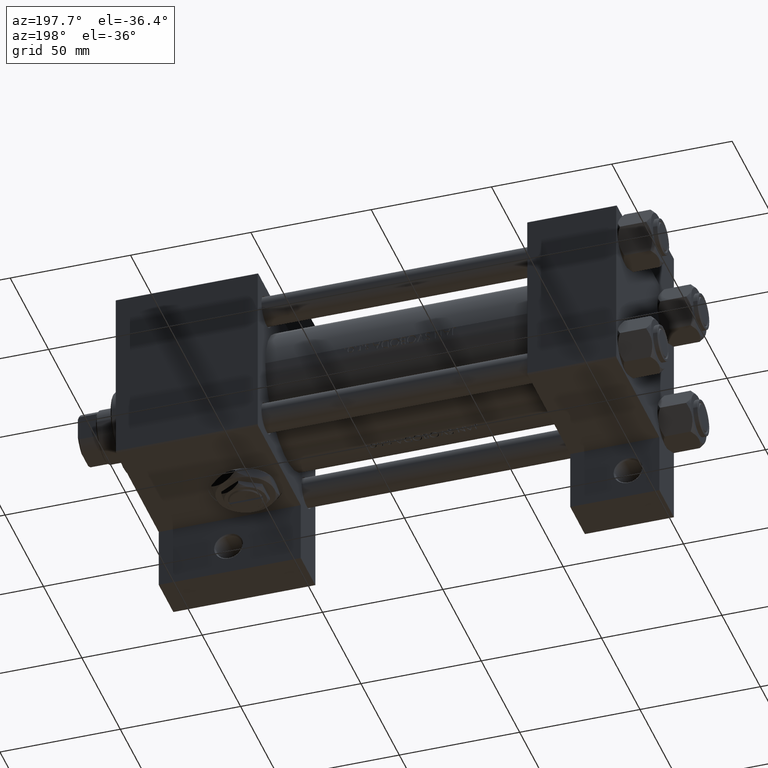
[diagram: clean part render]
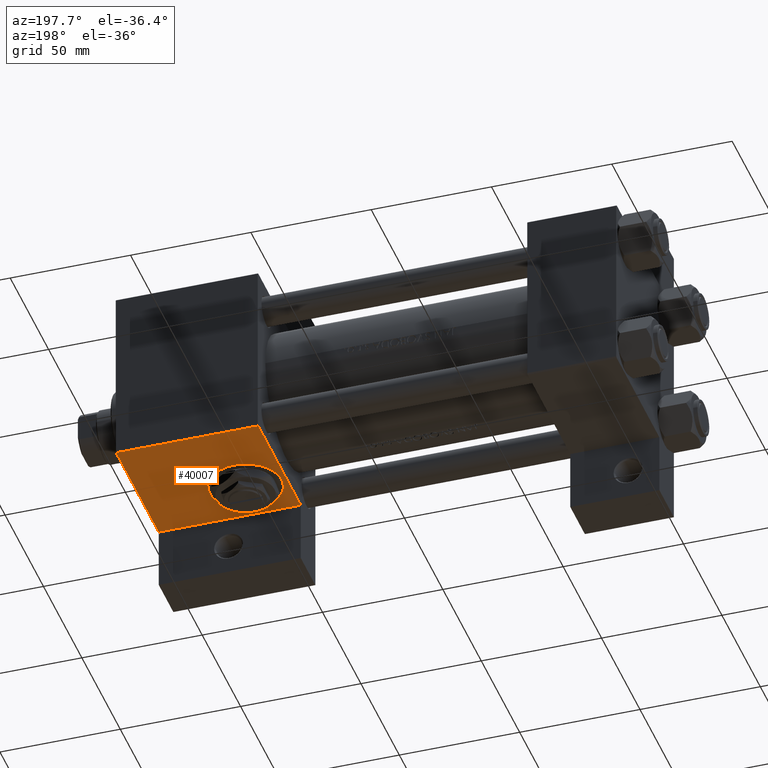
[diagram: same view with one face highlighted and labeled with its STEP entity id]
A machine part, auxiliary view. The second image highlights one B-rep face of the part: STEP entity #40007.
In plain terms, the highlighted planar face has unit normal (0, 0, -1).
Its self-contained STEP definition (entity closure, byte-faithful):
#359 = CARTESIAN_POINT ( 'NONE',  ( 149.0000000000000000, 37.50000000000000000, 36.99999999999999289 ) ) ;
#1391 = CARTESIAN_POINT ( 'NONE',  ( 149.0000000000000000, 37.50000000000000000, -18.50000000000000000 ) ) ;
#1693 = FACE_BOUND ( 'NONE', #20043, .T. ) ;
#1768 = CARTESIAN_POINT ( 'NONE',  ( 165.9999999999999716, 37.50000000000000000, -15.00000000000002487 ) ) ;
#2922 = VECTOR ( 'NONE', #32035, 1000.000000000000000 ) ;
#3543 = DIRECTION ( 'NONE',  ( 0.000000000000000000, 1.000000000000000000, 0.000000000000000000 ) ) ;
#6325 = EDGE_CURVE ( 'NONE', #20282, #35013, #9003, .T. ) ;
#6381 = AXIS2_PLACEMENT_3D ( 'NONE', #28101, #16651, #38575 ) ;
#6602 = EDGE_CURVE ( 'NONE', #36218, #33463, #16595, .T. ) ;
#7580 = CARTESIAN_POINT ( 'NONE',  ( 149.0000000000000000, 37.50000000000000000, -18.50000000000000355 ) ) ;
#9003 = LINE ( 'NONE', #34906, #37203 ) ;
#9314 = ORIENTED_EDGE ( 'NONE', *, *, #6602, .T. ) ;
#10360 = DIRECTION ( 'NONE',  ( 0.000000000000000000, 0.000000000000000000, -1.000000000000000000 ) ) ;
#10599 = LINE ( 'NONE', #21078, #38142 ) ;
#12323 = VERTEX_POINT ( 'NONE', #21459 ) ;
#13155 = FACE_OUTER_BOUND ( 'NONE', #16094, .T. ) ;
#16094 = EDGE_LOOP ( 'NONE', ( #30718, #34142, #45418, #9314 ) ) ;
#16595 = LINE ( 'NONE', #1391, #2922 ) ;
#16651 = DIRECTION ( 'NONE',  ( -0.000000000000000000, 1.000000000000000000, 0.000000000000000000 ) ) ;
#17856 = CARTESIAN_POINT ( 'NONE',  ( 149.0000000000000000, 37.50000000000000000, 37.49999999999999289 ) ) ;
#18327 = DIRECTION ( 'NONE',  ( 0.000000000000000000, 0.000000000000000000, -1.000000000000000000 ) ) ;
#19907 = CARTESIAN_POINT ( 'NONE',  ( 208.0000000000000284, 37.49999999999999289, -18.50000000000000000 ) ) ;
#20043 = EDGE_LOOP ( 'NONE', ( #47993, #41968 ) ) ;
#20282 = VERTEX_POINT ( 'NONE', #359 ) ;
#20363 = CARTESIAN_POINT ( 'NONE',  ( 165.9999999999999716, 37.50000000000000000, 0.000000000000000000 ) ) ;
#21078 = CARTESIAN_POINT ( 'NONE',  ( 208.0000000000000000, 37.50000000000000000, 37.49999999999999289 ) ) ;
#21459 = CARTESIAN_POINT ( 'NONE',  ( 165.9999999999999716, 37.50000000000000000, 15.00000000000002487 ) ) ;
#21484 = EDGE_CURVE ( 'NONE', #12323, #49267, #25575, .T. ) ;
#23383 = PLANE ( 'NONE',  #6381 ) ;
#24188 = DIRECTION ( 'NONE',  ( 1.000000000000000000, 0.000000000000000000, 0.000000000000000000 ) ) ;
#25575 = CIRCLE ( 'NONE', #35887, 15.00000000000002487 ) ;
#26223 = DIRECTION ( 'NONE',  ( 0.000000000000000000, 0.000000000000000000, 1.000000000000000000 ) ) ;
#26311 = EDGE_CURVE ( 'NONE', #49267, #12323, #45811, .T. ) ;
#28101 = CARTESIAN_POINT ( 'NONE',  ( 208.0000000000000000, 37.50000000000000000, 37.49999999999999289 ) ) ;
#29484 = VECTOR ( 'NONE', #18327, 1000.000000000000000 ) ;
#30718 = ORIENTED_EDGE ( 'NONE', *, *, #41971, .F. ) ;
#32035 = DIRECTION ( 'NONE',  ( -1.000000000000000000, 1.176083712526648456E-16, -0.000000000000000000 ) ) ;
#33463 = VERTEX_POINT ( 'NONE', #7580 ) ;
#34142 = ORIENTED_EDGE ( 'NONE', *, *, #6325, .T. ) ;
#34263 = EDGE_CURVE ( 'NONE', #35013, #36218, #10599, .T. ) ;
#34906 = CARTESIAN_POINT ( 'NONE',  ( 208.0000000000000000, 37.50000000000000000, 36.99999999999999289 ) ) ;
#35013 = VERTEX_POINT ( 'NONE', #46327 ) ;
#35566 = DIRECTION ( 'NONE',  ( 0.000000000000000000, 1.000000000000000000, 0.000000000000000000 ) ) ;
#35887 = AXIS2_PLACEMENT_3D ( 'NONE', #44891, #3543, #26223 ) ;
#36218 = VERTEX_POINT ( 'NONE', #19907 ) ;
#36796 = LINE ( 'NONE', #17856, #29484 ) ;
#37203 = VECTOR ( 'NONE', #24188, 1000.000000000000000 ) ;
#38142 = VECTOR ( 'NONE', #10360, 1000.000000000000000 ) ;
#38575 = DIRECTION ( 'NONE',  ( 0.000000000000000000, -0.000000000000000000, 1.000000000000000000 ) ) ;
#38678 = AXIS2_PLACEMENT_3D ( 'NONE', #20363, #35566, #43764 ) ;
#40007 = ADVANCED_FACE ( 'NONE', ( #1693, #13155 ), #23383, .T. ) ;
#41968 = ORIENTED_EDGE ( 'NONE', *, *, #26311, .F. ) ;
#41971 = EDGE_CURVE ( 'NONE', #20282, #33463, #36796, .T. ) ;
#43764 = DIRECTION ( 'NONE',  ( 0.000000000000000000, 0.000000000000000000, 1.000000000000000000 ) ) ;
#44891 = CARTESIAN_POINT ( 'NONE',  ( 165.9999999999999716, 37.50000000000000000, 0.000000000000000000 ) ) ;
#45418 = ORIENTED_EDGE ( 'NONE', *, *, #34263, .T. ) ;
#45811 = CIRCLE ( 'NONE', #38678, 15.00000000000002487 ) ;
#46327 = CARTESIAN_POINT ( 'NONE',  ( 208.0000000000000000, 37.50000000000000000, 36.99999999999999289 ) ) ;
#47993 = ORIENTED_EDGE ( 'NONE', *, *, #21484, .F. ) ;
#49267 = VERTEX_POINT ( 'NONE', #1768 ) ;